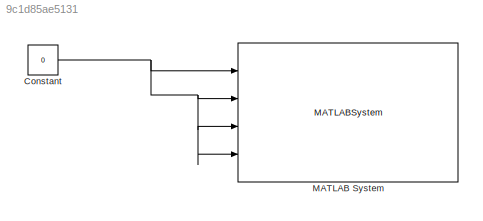
MODEL slx_9c1d85ae5131
KIND model
CONFIG AbsTol = auto
CONFIG EnableMultiTasking = on
CONFIG FixedStep = auto
CONFIG MaxStep = auto
CONFIG MinStep = auto
CONFIG RelTol = 1e-3
CONFIG SampleTimeConstraint = Unconstrained
CONFIG SolverName = ode45
CONFIG StartTime = 0.0
CONFIG StopTime = 10.0
BLOCK [Constant] Constant
  OutDataTypeStr = int16
  Value = 0
BLOCK [MATLABSystem] MATLAB System
  MaskDisplay = disp('AFMSV2Driver');\nport_label('input',1,'U1');\nport_label('input',2,'U2');\nport_label('input',3,'U3');\nport_label('input',4,'U4');
  MaskType = AFMSV2Driver
  Ports = [4]
  SampleTime = 0.1
  System = AFMSV2Driver
NET Constant:1 -> MATLAB System:1, MATLAB System:2, MATLAB System:3, MATLAB System:4
note: NET lines group one-source signal fan-out (src -> all destinations, sorted); 1:1 wires keep LINE
